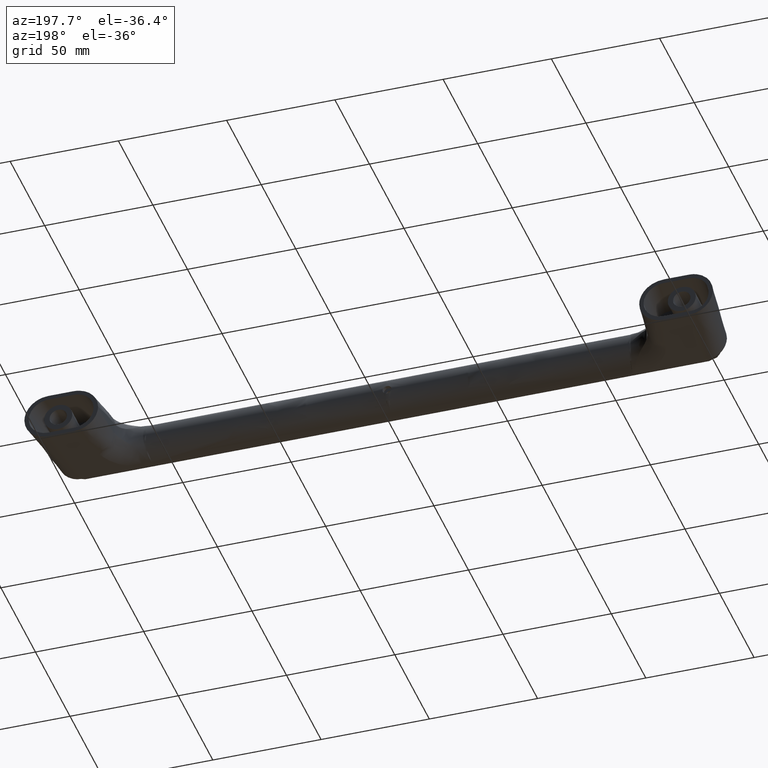
[diagram: clean part render]
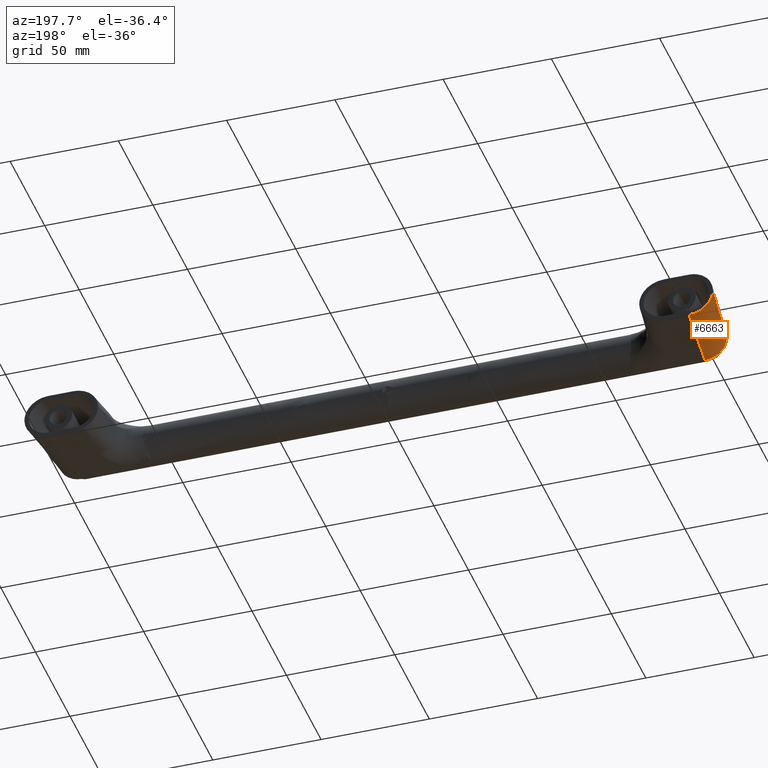
[diagram: same view with one face highlighted and labeled with its STEP entity id]
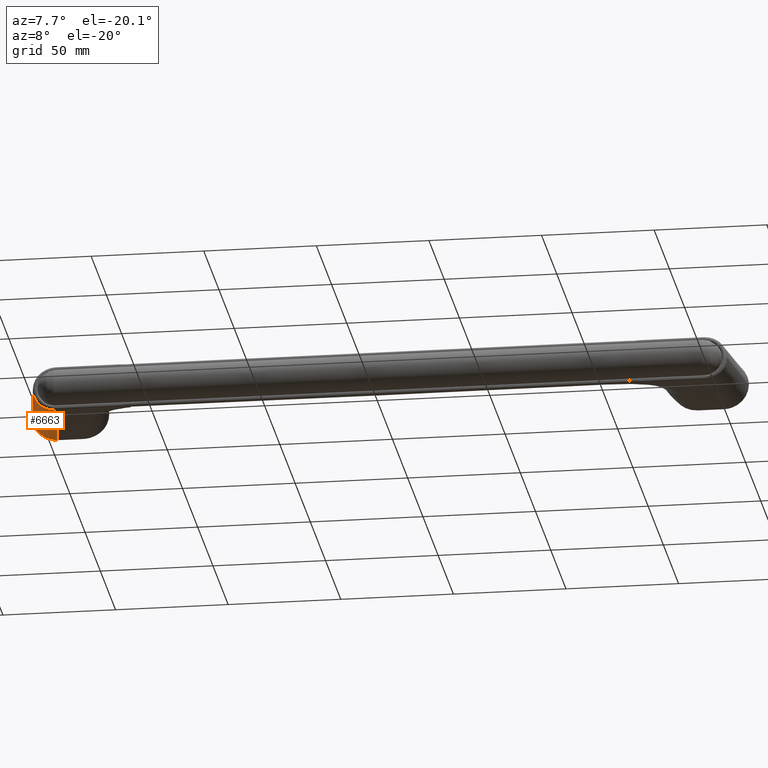
[diagram: same view with one face highlighted and labeled with its STEP entity id]
A machine part, auxiliary view. The second image highlights one B-rep face of the part: STEP entity #6663.
A second angle (auxiliary view) of the same face is appended — the face is thin or edge-on in the first view.
In plain terms, the highlighted face is a freeform B-spline surface patch.
Its self-contained STEP definition (entity closure, byte-faithful):
#3024=CARTESIAN_POINT('',(-154.118395025761000,-0.005863998665268,-8.864281188054550));
#3025=VERTEX_POINT('',#3024);
#3270=CARTESIAN_POINT('',(-144.051613881013000,-10.026647000498500,-8.972613018194071));
#3271=VERTEX_POINT('',#3270);
#3332=CARTESIAN_POINT('',(-144.051613881013000,-10.026647000498500,-8.972613018194060));
#3333=CARTESIAN_POINT('',(-144.072200779585700,-10.026640851115060,-8.972388565682484));
#3334=CARTESIAN_POINT('',(-144.093044749534700,-10.026570953223230,-8.972161325706681));
#3335=CARTESIAN_POINT('',(-144.134454282839410,-10.026304152478289,-8.971709901666898));
#3336=CARTESIAN_POINT('',(-144.196546876272610,-10.025713324390161,-8.971033038075314));
#3337=CARTESIAN_POINT('',(-144.341277941812110,-10.023002911564660,-8.969455593200729));
#3338=CARTESIAN_POINT('',(-144.630135573734410,-10.012273366646850,-8.966308290057588));
#3339=CARTESIAN_POINT('',(-144.876697961006810,-9.994032294574769,-8.963623522899152));
#3340=CARTESIAN_POINT('',(-145.368457595027190,-9.945561471227226,-8.958271098314489));
#3341=CARTESIAN_POINT('',(-145.694480477336300,-9.897291783722750,-8.954725589590325));
#3342=CARTESIAN_POINT('',(-146.180761627322510,-9.800708863897585,-8.949441713530929));
#3343=CARTESIAN_POINT('',(-146.342758867462090,-9.764378295533968,-8.947682220548961));
#3344=CARTESIAN_POINT('',(-146.663396333268110,-9.684152198225123,-8.944201170199557));
#3345=CARTESIAN_POINT('',(-146.822141751456800,-9.640257858413657,-8.942478465831206));
#3346=CARTESIAN_POINT('',(-147.293742690713090,-9.497434362998673,-8.937362807628944));
#3347=CARTESIAN_POINT('',(-147.910204885105910,-9.277347452526247,-8.930681566240708));
#3348=CARTESIAN_POINT('',(-148.502339645960290,-8.998792218221963,-8.924275022390946));
#3349=CARTESIAN_POINT('',(-148.937186221978100,-8.767633634545325,-8.919574345900157));
#3350=CARTESIAN_POINT('',(-149.080589941829000,-8.686867202450047,-8.918024855979228));
#3351=CARTESIAN_POINT('',(-149.364250647770210,-8.517771511725284,-8.914961268003333));
#3352=CARTESIAN_POINT('',(-149.504791143613400,-8.429233710630925,-8.913444113744532));
#3353=CARTESIAN_POINT('',(-149.917306378121110,-8.154938097695030,-8.908993028089707));
#3354=CARTESIAN_POINT('',(-150.181406670811500,-7.959878257066141,-8.906146152662361));
#3355=CARTESIAN_POINT('',(-150.688356111515110,-7.546001999681523,-8.900686761697772));
#3356=CARTESIAN_POINT('',(-150.931204030021690,-7.327184208459692,-8.898074260177742));
#3357=CARTESIAN_POINT('',(-151.395593707427790,-6.865730553418009,-8.893083848265761));
#3358=CARTESIAN_POINT('',(-151.617137224590010,-6.623096655148478,-8.890705918901485));
#3359=CARTESIAN_POINT('',(-151.880326557663100,-6.304444321786734,-8.887884571174377));
#3360=CARTESIAN_POINT('',(-151.932346312694790,-6.239852901651299,-8.887327117504233));
#3361=CARTESIAN_POINT('',(-152.034588713619200,-6.109628657624690,-8.886231849266434));
#3362=CARTESIAN_POINT('',(-152.185226885061410,-5.912784305696936,-8.884618722592686));
#3363=CARTESIAN_POINT('',(-152.327781567460790,-5.711467343100916,-8.883093886931269));
#3364=CARTESIAN_POINT('',(-152.602281849573190,-5.302963391532964,-8.880160039407526));
#3365=CARTESIAN_POINT('',(-152.940041355149300,-4.742665726742760,-8.876556555866975));
#3366=CARTESIAN_POINT('',(-153.221861194098300,-4.151416536818358,-8.873563323005145));
#3367=CARTESIAN_POINT('',(-153.411842977548100,-3.696148337065603,-8.871551549288890));
#3368=CARTESIAN_POINT('',(-153.471599940961110,-3.542416817990779,-8.870919887376628));
#3369=CARTESIAN_POINT('',(-153.555767875320900,-3.308794355391266,-8.870032000741805));
#3370=CARTESIAN_POINT('',(-153.582911004103290,-3.230407308218886,-8.869745991180292));
#3371=CARTESIAN_POINT('',(-153.635068666317300,-3.073503547173782,-8.869197065609551));
#3372=CARTESIAN_POINT('',(-153.660123755275810,-2.994877298329551,-8.868933721459483));
#3373=CARTESIAN_POINT('',(-153.780332564604690,-2.600883082196706,-8.867672026293210));
#3374=CARTESIAN_POINT('',(-153.860323853234010,-2.282932582027704,-8.866838342049098));
#3375=CARTESIAN_POINT('',(-153.988669863266210,-1.641643100711155,-8.865514550233177));
#3376=CARTESIAN_POINT('',(-154.037023377816300,-1.318303914006691,-8.865024455961335));
#3377=CARTESIAN_POINT('',(-154.085667263640400,-0.829226698250435,-8.864548776058594));
#3378=CARTESIAN_POINT('',(-154.097893763564400,-0.665521683815908,-8.864433536940185));
#3379=CARTESIAN_POINT('',(-154.110165705206410,-0.418930666005131,-8.864326600847068));
#3380=CARTESIAN_POINT('',(-154.114784016154690,-0.295376662502221,-8.864289621185938));
#3381=CARTESIAN_POINT('',(-154.117489653240710,-0.150773448049390,-8.864275623667563));
#3382=CARTESIAN_POINT('',(-154.118071056160890,-0.088702167774179,-8.864275907008834));
#3383=CARTESIAN_POINT('',(-154.118329790686400,-0.047299364983064,-8.864277496224212));
#3384=CARTESIAN_POINT('',(-154.118394725700000,-0.026452121569019,-8.864278997609191));
#3385=CARTESIAN_POINT('',(-154.118395025761000,-0.005863998665264,-8.864281188054589));
#3386=B_SPLINE_CURVE_WITH_KNOTS('',3,(#3332,#3333,#3334,#3335,#3336,#3337,#3338,#3339,#3340,#3341,#3342,#3343,#3344,#3345,#3346,#3347,#3348,#3349,#3350,#3351,#3352,#3353,#3354,#3355,#3356,#3357,#3358,#3359,#3360,#3361,#3362,#3363,#3364,#3365,#3366,#3367,#3368,#3369,#3370,#3371,#3372,#3373,#3374,#3375,#3376,#3377,#3378,#3379,#3380,#3381,#3382,#3383,#3384,#3385),.UNSPECIFIED.,.F.,.U.,(4,2,1,1,1,2,2,2,2,1,2,2,2,2,2,2,2,1,2,1,2,2,2,2,2,2,2,1,1,2,4),(0.0,0.003906249999997,0.007812499999994,0.015624999999994,0.031249999999998,0.062500000000001,0.125000000000001,0.156250000000001,0.187500000000002,0.250000000000002,0.312500000000003,0.343750000000003,0.375000000000004,0.437500000000000,0.499999999999996,0.562499999999992,0.578124999999992,0.593749999999991,0.624999999999992,0.687499999999995,0.749999999999998,0.781249999999998,0.796874999999998,0.812499999999998,0.874999999999999,0.937500000000000,0.968750000000000,0.984375000000000,0.992187500000000,0.996093750000000,1.0),.UNSPECIFIED.);
#3387=EDGE_CURVE('',#3271,#3025,#3386,.T.);
#6578=CARTESIAN_POINT('',(-144.027245998861300,-10.020606012124709,-8.752116927035161));
#6579=CARTESIAN_POINT('',(-153.917574829057710,-9.983514966028993,-7.398293649274931));
#6580=CARTESIAN_POINT('',(-153.954336475481600,-0.004564667825056,-7.666653686994876));
#6581=CARTESIAN_POINT('',(-145.397262484267910,-10.360243802917189,-21.148897163301569));
#6582=CARTESIAN_POINT('',(-155.609723429550200,-10.321944686055099,-19.750979299465861));
#6583=CARTESIAN_POINT('',(-155.647682418056600,-0.017975834768728,-20.028079935000061));
#6584=CARTESIAN_POINT('',(-146.767278969674410,-10.699881593709669,-33.545677399567928));
#6585=CARTESIAN_POINT('',(-157.301872030043110,-10.660374406081216,-32.103664949656817));
#6586=CARTESIAN_POINT('',(-157.341028360631500,-0.031387001712400,-32.389506183005231));
#6587=CARTESIAN_POINT('',(-148.137295455080990,-11.039519384502150,-45.942457635834323));
#6588=CARTESIAN_POINT('',(-158.994020630535600,-10.998804126107320,-44.456350599847681));
#6589=CARTESIAN_POINT('',(-159.034374303206500,-0.044798168656070,-44.750932431010348));
#6597=(BOUNDED_SURFACE()B_SPLINE_SURFACE(2,3,((#6578,#6581,#6584,#6587),(#6579,#6582,#6585,#6588),(#6580,#6583,#6586,#6589)),.UNSPECIFIED.,.F.,.F.,.U.)B_SPLINE_SURFACE_WITH_KNOTS((3,3),(4,4),(0.0,18.175608229381240),(0.0,37.430630946185673),.UNSPECIFIED.)GEOMETRIC_REPRESENTATION_ITEM()RATIONAL_B_SPLINE_SURFACE(((1.0,1.0,1.0,1.0),(0.708419695037308,0.708419695037308,0.708419695037308,0.708419695037308),(1.0,1.0,1.0,1.0)))REPRESENTATION_ITEM('')SURFACE());
#6598=CARTESIAN_POINT('',(-147.977883841506410,-11.0,-44.500000000000000));
#6599=VERTEX_POINT('',#6598);
#6600=CARTESIAN_POINT('',(-144.051613881012800,-10.026647000498491,-8.972613018194050));
#6601=CARTESIAN_POINT('',(-145.360370534510710,-10.351098000332311,-20.815075345462720));
#6602=CARTESIAN_POINT('',(-146.669127188008390,-10.675549000166120,-32.657537672731337));
#6603=CARTESIAN_POINT('',(-147.977883841506410,-10.999999999999940,-44.499999999999993));
#6604=B_SPLINE_CURVE_WITH_KNOTS('',3,(#6600,#6601,#6602,#6603),.UNSPECIFIED.,.F.,.U.,(4,4),(0.405120867099112,0.592174735091114),.UNSPECIFIED.);
#6605=EDGE_CURVE('',#3271,#6599,#6604,.T.);
#6606=ORIENTED_EDGE('',*,*,#6605,.F.);
#6607=ORIENTED_EDGE('',*,*,#3387,.T.);
#6608=CARTESIAN_POINT('',(-159.0,-0.044525926872985,-44.500000000000000));
#6609=VERTEX_POINT('',#6608);
#6610=CARTESIAN_POINT('',(-159.000000000000110,-0.044525926872934,-44.499999999999908));
#6611=CARTESIAN_POINT('',(-157.372798341920400,-0.031638617470380,-32.621427062684788));
#6612=CARTESIAN_POINT('',(-155.745596683840800,-0.018751308067824,-20.742854125369639));
#6613=CARTESIAN_POINT('',(-154.118395025761200,-0.005863998665268,-8.864281188054470));
#6614=B_SPLINE_CURVE_WITH_KNOTS('',3,(#6610,#6611,#6612,#6613),.UNSPECIFIED.,.F.,.U.,(4,4),(0.410283557929857,0.598444409665557),.UNSPECIFIED.);
#6615=EDGE_CURVE('',#6609,#3025,#6614,.T.);
#6616=ORIENTED_EDGE('',*,*,#6615,.F.);
#6617=CARTESIAN_POINT('',(-147.977883841506410,-11.0,-44.500000000000000));
#6618=CARTESIAN_POINT('',(-148.340806401479200,-11.0,-44.500000000000007));
#6619=CARTESIAN_POINT('',(-148.700410273794600,-10.982220351372749,-44.500000000000021));
#6620=CARTESIAN_POINT('',(-149.413240839585400,-10.912495742192130,-44.500000000000007));
#6621=CARTESIAN_POINT('',(-150.119692541583990,-10.808596794063980,-44.500000000000007));
#6622=CARTESIAN_POINT('',(-150.813525116465910,-10.637091710839560,-44.500000000000007));
#6623=CARTESIAN_POINT('',(-151.329083451943400,-10.482660985782680,-44.500000000000007));
#6624=CARTESIAN_POINT('',(-151.500132134422700,-10.426876186464440,-44.499999999999993));
#6625=CARTESIAN_POINT('',(-151.840589273859510,-10.306519188574599,-44.499999999999993));
#6626=CARTESIAN_POINT('',(-152.010465806353890,-10.241741754207011,-44.500000000000007));
#6627=CARTESIAN_POINT('',(-152.512614979725300,-10.035975099258319,-44.500000000000000));
#6628=CARTESIAN_POINT('',(-152.838200387640510,-9.883424389982995,-44.500000000000028));
#6629=CARTESIAN_POINT('',(-153.471522836696410,-9.548436183921551,-44.500000000000043));
#6630=CARTESIAN_POINT('',(-153.779258678032990,-9.365996678084052,-44.500000000000057));
#6631=CARTESIAN_POINT('',(-154.376869886635290,-8.971210605435902,-44.500000000000057));
#6632=CARTESIAN_POINT('',(-154.666746551243310,-8.758866211003021,-44.500000000000007));
#6633=CARTESIAN_POINT('',(-155.087767716490390,-8.417252082131659,-44.500000000000000));
#6634=CARTESIAN_POINT('',(-155.226112007581690,-8.299226206687866,-44.499999999999993));
#6635=CARTESIAN_POINT('',(-155.495330766124000,-8.057806896131931,-44.500000000000007));
#6636=CARTESIAN_POINT('',(-155.626477807103210,-7.934219557072509,-44.500000000000043));
#6637=CARTESIAN_POINT('',(-156.009708672990200,-7.554971398841476,-44.500000000000050));
#6638=CARTESIAN_POINT('',(-156.493503714734290,-7.026717294953651,-44.499999999999929));
#6639=CARTESIAN_POINT('',(-156.923611159309790,-6.453841344612092,-44.500000000000028));
#6640=CARTESIAN_POINT('',(-157.225726009386590,-6.007174516272739,-44.500000000000043));
#6641=CARTESIAN_POINT('',(-157.323013936981710,-5.855445553483335,-44.500000000000007));
#6642=CARTESIAN_POINT('',(-157.510623001993200,-5.546197258098192,-44.500000000000007));
#6643=CARTESIAN_POINT('',(-157.601053063991910,-5.388425681252099,-44.500000000000007));
#6644=CARTESIAN_POINT('',(-157.858859891319700,-4.911580942319007,-44.500000000000028));
#6645=CARTESIAN_POINT('',(-158.013801062724810,-4.587426615439219,-44.500000000000000));
#6646=CARTESIAN_POINT('',(-158.290689526478790,-3.926922471086709,-44.499999999999993));
#6647=CARTESIAN_POINT('',(-158.412634990922300,-3.590571977967350,-44.500000000000021));
#6648=CARTESIAN_POINT('',(-158.623425008440390,-2.905635938901593,-44.500000000000007));
#6649=CARTESIAN_POINT('',(-158.712272437000790,-2.557051455817831,-44.500000000000007));
#6650=CARTESIAN_POINT('',(-158.801967030369410,-2.113423844645151,-44.500000000000007));
#6651=CARTESIAN_POINT('',(-158.818850857214900,-2.024206859906304,-44.499999999999979));
#6652=CARTESIAN_POINT('',(-158.850338757229200,-1.845624022862415,-44.499999999999979));
#6653=CARTESIAN_POINT('',(-158.894176661237990,-1.577436092634901,-44.499999999999979));
#6654=CARTESIAN_POINT('',(-158.927891303093300,-1.308312552112106,-44.500000000000007));
#6655=CARTESIAN_POINT('',(-158.981884972701490,-0.768823727181310,-44.500000000000000));
#6656=CARTESIAN_POINT('',(-159.0,-0.407511938907765,-44.500000000000007));
#6657=CARTESIAN_POINT('',(-159.0,-0.044525926872934,-44.500000000000000));
#6658=B_SPLINE_CURVE_WITH_KNOTS('',3,(#6617,#6618,#6619,#6620,#6621,#6622,#6623,#6624,#6625,#6626,#6627,#6628,#6629,#6630,#6631,#6632,#6633,#6634,#6635,#6636,#6637,#6638,#6639,#6640,#6641,#6642,#6643,#6644,#6645,#6646,#6647,#6648,#6649,#6650,#6651,#6652,#6653,#6654,#6655,#6656,#6657),.UNSPECIFIED.,.F.,.U.,(4,2,1,2,2,2,2,2,2,2,2,1,2,2,2,2,2,2,2,1,2,4),(0.0,0.062499999999999,0.124999999999999,0.187499999999998,0.218749999999997,0.249999999999997,0.312499999999997,0.374999999999996,0.437499999999995,0.468749999999997,0.499999999999999,0.562500000000002,0.625000000000005,0.656250000000005,0.687500000000005,0.750000000000003,0.812500000000001,0.874999999999999,0.890625000000000,0.906250000000000,0.937500000000000,1.0),.UNSPECIFIED.);
#6659=EDGE_CURVE('',#6599,#6609,#6658,.T.);
#6660=ORIENTED_EDGE('',*,*,#6659,.F.);
#6661=EDGE_LOOP('',(#6606,#6607,#6616,#6660));
#6662=FACE_OUTER_BOUND('',#6661,.T.);
#6663=ADVANCED_FACE('',(#6662),#6597,.T.);